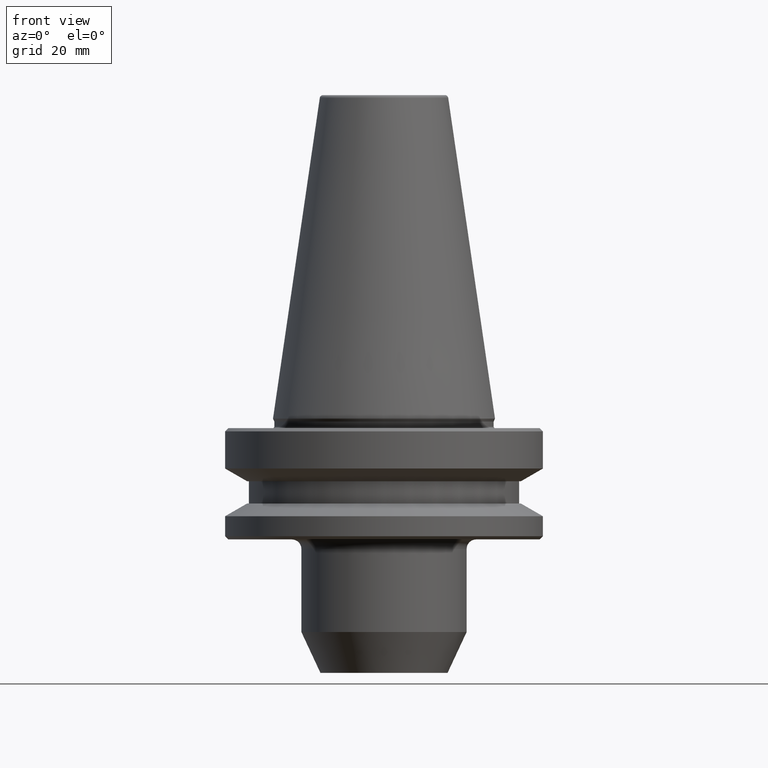
[diagram: clean part render]
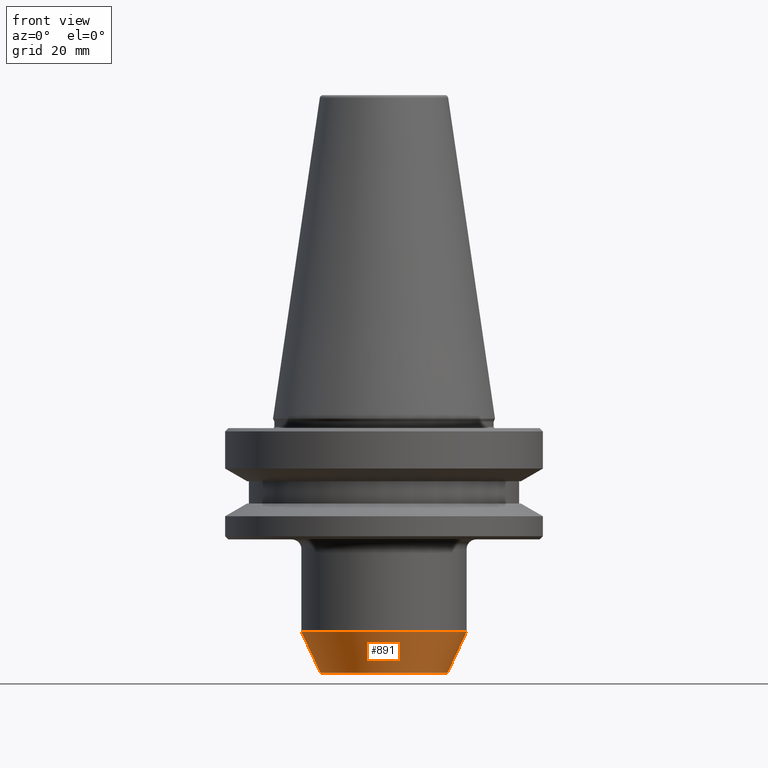
[diagram: same view with one face highlighted and labeled with its STEP entity id]
A machine part, front view. The second image highlights one B-rep face of the part: STEP entity #891.
In plain terms, the highlighted conical surface has half-angle 25 deg.
Its self-contained STEP definition (entity closure, byte-faithful):
#13 = ORIENTED_EDGE ( 'NONE', *, *, #861, .T. ) ;
#24 = VECTOR ( 'NONE', #86, 1000.000000000000100 ) ;
#26 = DIRECTION ( 'NONE',  ( -0.0000000000000000000, -0.0000000000000000000, 1.000000000000000000 ) ) ;
#77 = DIRECTION ( 'NONE',  ( 1.000000000000000000, 0.0000000000000000000, 0.0000000000000000000 ) ) ;
#79 = EDGE_CURVE ( 'NONE', #368, #852, #372, .T. ) ;
#86 = DIRECTION ( 'NONE',  ( 0.4226182617406886200, 0.0000000000000000000, 0.9063077870366550400 ) ) ;
#112 = DIRECTION ( 'NONE',  ( 1.000000000000000000, 0.0000000000000000000, 0.0000000000000000000 ) ) ;
#173 = AXIS2_PLACEMENT_3D ( 'NONE', #992, #26, #785 ) ;
#215 = LINE ( 'NONE', #545, #24 ) ;
#224 = CIRCLE ( 'NONE', #173, 19.99999999999790700 ) ;
#227 = EDGE_CURVE ( 'NONE', #349, #852, #215, .T. ) ;
#266 = LINE ( 'NONE', #726, #688 ) ;
#267 = CARTESIAN_POINT ( 'NONE',  ( 19.99999999999790700, 0.0000000000000000000, -80.00000000000142100 ) ) ;
#270 = CARTESIAN_POINT ( 'NONE',  ( 0.0000000000000000000, 0.0000000000000000000, -80.00000000000142100 ) ) ;
#342 = VERTEX_POINT ( 'NONE', #665 ) ;
#349 = VERTEX_POINT ( 'NONE', #267 ) ;
#368 = VERTEX_POINT ( 'NONE', #878 ) ;
#372 = CIRCLE ( 'NONE', #884, 25.99999999999769100 ) ;
#376 = DIRECTION ( 'NONE',  ( -0.4226182617406886200, 5.175581015019525700E-017, 0.9063077870366550400 ) ) ;
#395 = FACE_OUTER_BOUND ( 'NONE', #801, .T. ) ;
#469 = DIRECTION ( 'NONE',  ( -0.0000000000000000000, -0.0000000000000000000, 1.000000000000000000 ) ) ;
#482 = CONICAL_SURFACE ( 'NONE', #841, 19.99999999999790700, 0.4363323129985704500 ) ;
#545 = CARTESIAN_POINT ( 'NONE',  ( 19.99999999999790700, 0.0000000000000000000, -80.00000000000142100 ) ) ;
#546 = CARTESIAN_POINT ( 'NONE',  ( 25.99999999999769100, 0.0000000000000000000, -67.13295847694412500 ) ) ;
#619 = ORIENTED_EDGE ( 'NONE', *, *, #227, .T. ) ;
#656 = ORIENTED_EDGE ( 'NONE', *, *, #79, .F. ) ;
#665 = CARTESIAN_POINT ( 'NONE',  ( -19.99999999999790700, 2.816687638038642600E-015, -80.00000000000142100 ) ) ;
#676 = DIRECTION ( 'NONE',  ( -0.0000000000000000000, -0.0000000000000000000, 1.000000000000000000 ) ) ;
#688 = VECTOR ( 'NONE', #376, 1000.000000000000100 ) ;
#726 = CARTESIAN_POINT ( 'NONE',  ( -19.99999999999790700, 2.449293598294450100E-015, -80.00000000000142100 ) ) ;
#767 = ORIENTED_EDGE ( 'NONE', *, *, #902, .F. ) ;
#785 = DIRECTION ( 'NONE',  ( 1.000000000000000000, 0.0000000000000000000, 0.0000000000000000000 ) ) ;
#801 = EDGE_LOOP ( 'NONE', ( #767, #13, #619, #656 ) ) ;
#840 = CARTESIAN_POINT ( 'NONE',  ( 0.0000000000000000000, 0.0000000000000000000, -67.13295847694412500 ) ) ;
#841 = AXIS2_PLACEMENT_3D ( 'NONE', #270, #676, #112 ) ;
#852 = VERTEX_POINT ( 'NONE', #546 ) ;
#861 = EDGE_CURVE ( 'NONE', #342, #349, #224, .T. ) ;
#878 = CARTESIAN_POINT ( 'NONE',  ( -25.99999999999769100, 3.184081677782835400E-015, -67.13295847694412500 ) ) ;
#884 = AXIS2_PLACEMENT_3D ( 'NONE', #840, #469, #77 ) ;
#891 = ADVANCED_FACE ( 'NONE', ( #395 ), #482, .T. ) ;
#902 = EDGE_CURVE ( 'NONE', #342, #368, #266, .T. ) ;
#992 = CARTESIAN_POINT ( 'NONE',  ( 0.0000000000000000000, 0.0000000000000000000, -80.00000000000142100 ) ) ;